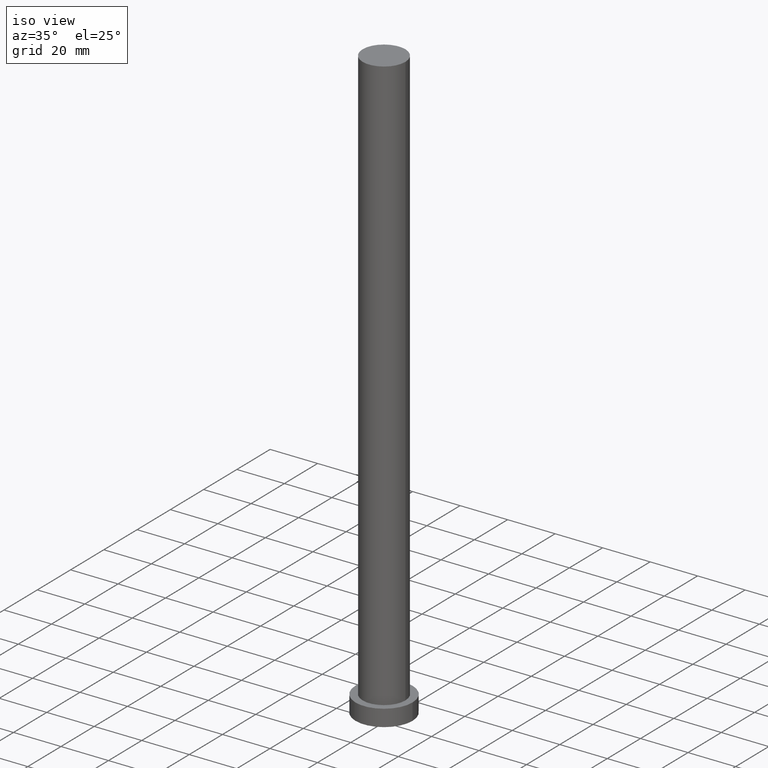
[diagram: clean part render]
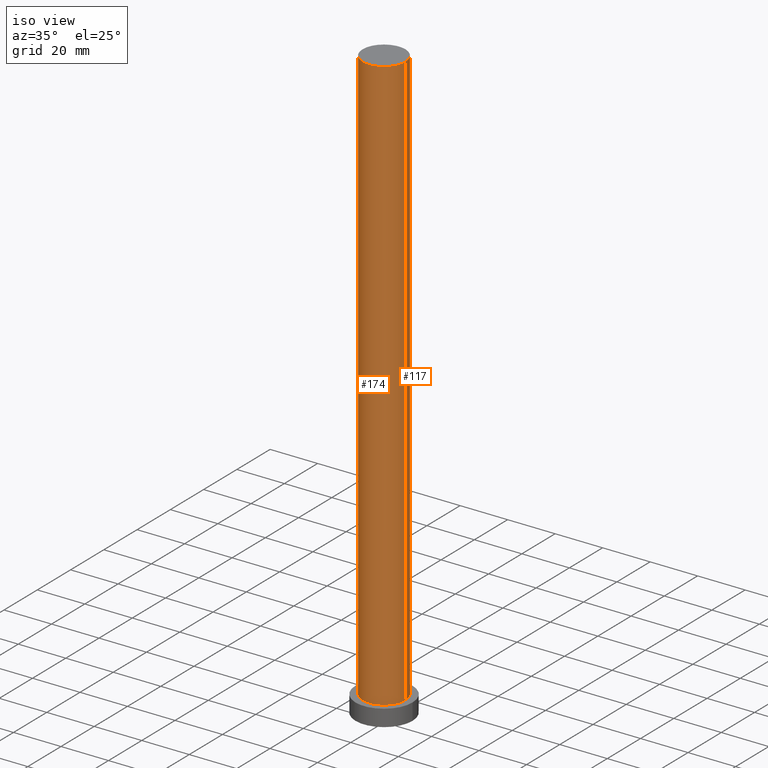
[diagram: same view with one multi-face feature highlighted, each face labeled with its STEP entity id]
A machine part, iso view. The highlighted faces form ONE feature: a constant-radius fillet chain: 2 tangent blend faces with common blend radius 9 mm. The faces share edges in the B-rep.
Their STEP definitions:
[1] entity #117 (Cylinder):
#2 = AXIS2_PLACEMENT_3D ( 'NONE', #241, #100, #182 ) ;
#4 = EDGE_CURVE ( 'NONE', #109, #25, #112, .T. ) ;
#21 = EDGE_CURVE ( 'NONE', #187, #25, #207, .T. ) ;
#24 = ORIENTED_EDGE ( 'NONE', *, *, #237, .T. ) ;
#25 = VERTEX_POINT ( 'NONE', #71 ) ;
#28 = CARTESIAN_POINT ( 'NONE',  ( 9.000000000000001776, 1.102182119232617911E-15, 250.0000000000000000 ) ) ;
#35 = DIRECTION ( 'NONE',  ( -0.000000000000000000, -0.000000000000000000, -1.000000000000000000 ) ) ;
#63 = VECTOR ( 'NONE', #189, 1000.000000000000000 ) ;
#65 = CARTESIAN_POINT ( 'NONE',  ( 0.000000000000000000, 0.000000000000000000, 250.0000000000000000 ) ) ;
#71 = CARTESIAN_POINT ( 'NONE',  ( -9.000000000000001776, 0.000000000000000000, 7.000000000000000000 ) ) ;
#75 = CARTESIAN_POINT ( 'NONE',  ( 9.000000000000001776, 1.102182119232617911E-15, 250.0000000000000000 ) ) ;
#88 = CIRCLE ( 'NONE', #238, 9.000000000000001776 ) ;
#89 = DIRECTION ( 'NONE',  ( 1.000000000000000000, 0.000000000000000000, 0.000000000000000000 ) ) ;
#100 = DIRECTION ( 'NONE',  ( 0.000000000000000000, 0.000000000000000000, 1.000000000000000000 ) ) ;
#102 = ORIENTED_EDGE ( 'NONE', *, *, #4, .T. ) ;
#106 = CARTESIAN_POINT ( 'NONE',  ( -9.000000000000001776, 0.000000000000000000, 250.0000000000000000 ) ) ;
#109 = VERTEX_POINT ( 'NONE', #145 ) ;
#112 = CIRCLE ( 'NONE', #2, 9.000000000000001776 ) ;
#117 = ADVANCED_FACE ( 'NONE', ( #122 ), #233, .T. ) ;
#122 = FACE_OUTER_BOUND ( 'NONE', #230, .T. ) ;
#127 = DIRECTION ( 'NONE',  ( 0.000000000000000000, 0.000000000000000000, 1.000000000000000000 ) ) ;
#131 = VECTOR ( 'NONE', #35, 1000.000000000000000 ) ;
#136 = EDGE_CURVE ( 'NONE', #184, #187, #88, .T. ) ;
#139 = ORIENTED_EDGE ( 'NONE', *, *, #21, .F. ) ;
#141 = ORIENTED_EDGE ( 'NONE', *, *, #136, .F. ) ;
#145 = CARTESIAN_POINT ( 'NONE',  ( 9.000000000000001776, 1.102182119232617911E-15, 7.000000000000000000 ) ) ;
#147 = CARTESIAN_POINT ( 'NONE',  ( -9.000000000000001776, 0.000000000000000000, 250.0000000000000000 ) ) ;
#151 = LINE ( 'NONE', #75, #131 ) ;
#167 = AXIS2_PLACEMENT_3D ( 'NONE', #208, #251, #236 ) ;
#182 = DIRECTION ( 'NONE',  ( 1.000000000000000000, 0.000000000000000000, 0.000000000000000000 ) ) ;
#184 = VERTEX_POINT ( 'NONE', #28 ) ;
#187 = VERTEX_POINT ( 'NONE', #106 ) ;
#189 = DIRECTION ( 'NONE',  ( -0.000000000000000000, -0.000000000000000000, -1.000000000000000000 ) ) ;
#207 = LINE ( 'NONE', #147, #63 ) ;
#208 = CARTESIAN_POINT ( 'NONE',  ( 0.000000000000000000, 0.000000000000000000, 250.0000000000000000 ) ) ;
#230 = EDGE_LOOP ( 'NONE', ( #141, #24, #102, #139 ) ) ;
#233 = CYLINDRICAL_SURFACE ( 'NONE', #167, 9.000000000000001776 ) ;
#236 = DIRECTION ( 'NONE',  ( -1.000000000000000000, 0.000000000000000000, 0.000000000000000000 ) ) ;
#237 = EDGE_CURVE ( 'NONE', #184, #109, #151, .T. ) ;
#238 = AXIS2_PLACEMENT_3D ( 'NONE', #65, #127, #89 ) ;
#241 = CARTESIAN_POINT ( 'NONE',  ( 0.000000000000000000, 0.000000000000000000, 7.000000000000000000 ) ) ;
#251 = DIRECTION ( 'NONE',  ( -0.000000000000000000, -0.000000000000000000, -1.000000000000000000 ) ) ;
[2] entity #174 (Cylinder):
#15 = DIRECTION ( 'NONE',  ( -0.000000000000000000, -0.000000000000000000, -1.000000000000000000 ) ) ;
#18 = DIRECTION ( 'NONE',  ( 0.000000000000000000, 0.000000000000000000, 1.000000000000000000 ) ) ;
#21 = EDGE_CURVE ( 'NONE', #187, #25, #207, .T. ) ;
#25 = VERTEX_POINT ( 'NONE', #71 ) ;
#26 = CARTESIAN_POINT ( 'NONE',  ( 0.000000000000000000, 0.000000000000000000, 7.000000000000000000 ) ) ;
#28 = CARTESIAN_POINT ( 'NONE',  ( 9.000000000000001776, 1.102182119232617911E-15, 250.0000000000000000 ) ) ;
#30 = CARTESIAN_POINT ( 'NONE',  ( 0.000000000000000000, 0.000000000000000000, 250.0000000000000000 ) ) ;
#33 = CARTESIAN_POINT ( 'NONE',  ( 0.000000000000000000, 0.000000000000000000, 250.0000000000000000 ) ) ;
#34 = CIRCLE ( 'NONE', #77, 9.000000000000001776 ) ;
#35 = DIRECTION ( 'NONE',  ( -0.000000000000000000, -0.000000000000000000, -1.000000000000000000 ) ) ;
#47 = DIRECTION ( 'NONE',  ( 1.000000000000000000, 0.000000000000000000, 0.000000000000000000 ) ) ;
#63 = VECTOR ( 'NONE', #189, 1000.000000000000000 ) ;
#71 = CARTESIAN_POINT ( 'NONE',  ( -9.000000000000001776, 0.000000000000000000, 7.000000000000000000 ) ) ;
#75 = CARTESIAN_POINT ( 'NONE',  ( 9.000000000000001776, 1.102182119232617911E-15, 250.0000000000000000 ) ) ;
#77 = AXIS2_PLACEMENT_3D ( 'NONE', #26, #110, #47 ) ;
#90 = CIRCLE ( 'NONE', #143, 9.000000000000001776 ) ;
#93 = DIRECTION ( 'NONE',  ( 1.000000000000000000, 0.000000000000000000, 0.000000000000000000 ) ) ;
#106 = CARTESIAN_POINT ( 'NONE',  ( -9.000000000000001776, 0.000000000000000000, 250.0000000000000000 ) ) ;
#109 = VERTEX_POINT ( 'NONE', #145 ) ;
#110 = DIRECTION ( 'NONE',  ( 0.000000000000000000, 0.000000000000000000, 1.000000000000000000 ) ) ;
#128 = DIRECTION ( 'NONE',  ( -1.000000000000000000, 0.000000000000000000, 0.000000000000000000 ) ) ;
#131 = VECTOR ( 'NONE', #35, 1000.000000000000000 ) ;
#143 = AXIS2_PLACEMENT_3D ( 'NONE', #33, #18, #93 ) ;
#145 = CARTESIAN_POINT ( 'NONE',  ( 9.000000000000001776, 1.102182119232617911E-15, 7.000000000000000000 ) ) ;
#147 = CARTESIAN_POINT ( 'NONE',  ( -9.000000000000001776, 0.000000000000000000, 250.0000000000000000 ) ) ;
#151 = LINE ( 'NONE', #75, #131 ) ;
#157 = EDGE_CURVE ( 'NONE', #25, #109, #34, .T. ) ;
#158 = AXIS2_PLACEMENT_3D ( 'NONE', #30, #15, #128 ) ;
#161 = ORIENTED_EDGE ( 'NONE', *, *, #237, .F. ) ;
#174 = ADVANCED_FACE ( 'NONE', ( #215 ), #192, .T. ) ;
#184 = VERTEX_POINT ( 'NONE', #28 ) ;
#187 = VERTEX_POINT ( 'NONE', #106 ) ;
#189 = DIRECTION ( 'NONE',  ( -0.000000000000000000, -0.000000000000000000, -1.000000000000000000 ) ) ;
#192 = CYLINDRICAL_SURFACE ( 'NONE', #158, 9.000000000000001776 ) ;
#207 = LINE ( 'NONE', #147, #63 ) ;
#212 = ORIENTED_EDGE ( 'NONE', *, *, #221, .F. ) ;
#215 = FACE_OUTER_BOUND ( 'NONE', #225, .T. ) ;
#221 = EDGE_CURVE ( 'NONE', #187, #184, #90, .T. ) ;
#225 = EDGE_LOOP ( 'NONE', ( #161, #212, #228, #249 ) ) ;
#228 = ORIENTED_EDGE ( 'NONE', *, *, #21, .T. ) ;
#237 = EDGE_CURVE ( 'NONE', #184, #109, #151, .T. ) ;
#249 = ORIENTED_EDGE ( 'NONE', *, *, #157, .T. ) ;